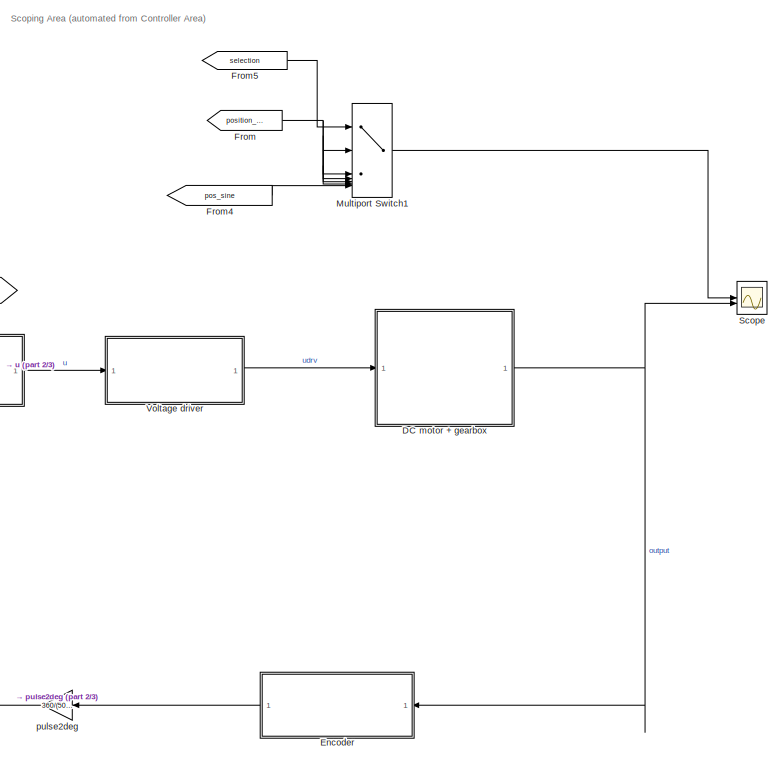
[diagram: root canvas - part 1/3, middle right region]
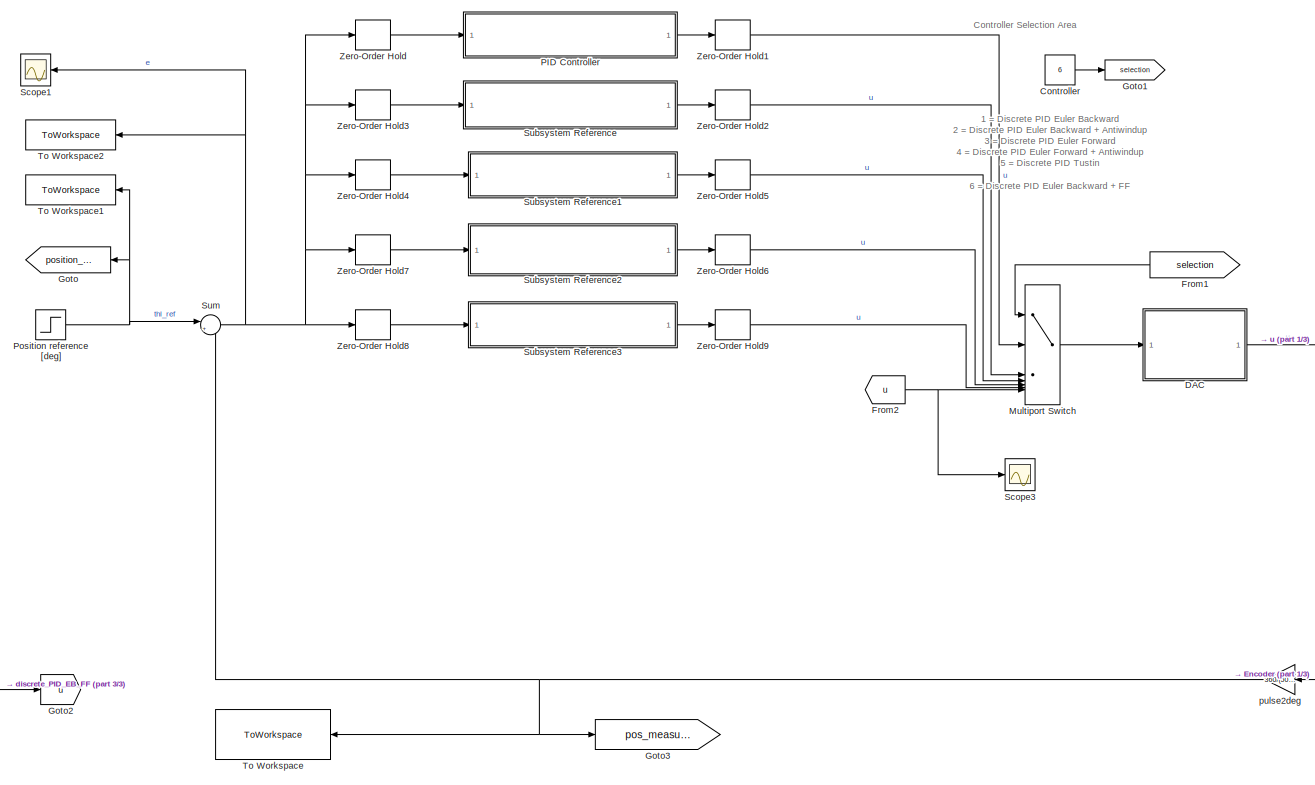
[diagram: root canvas - part 2/3, central region]
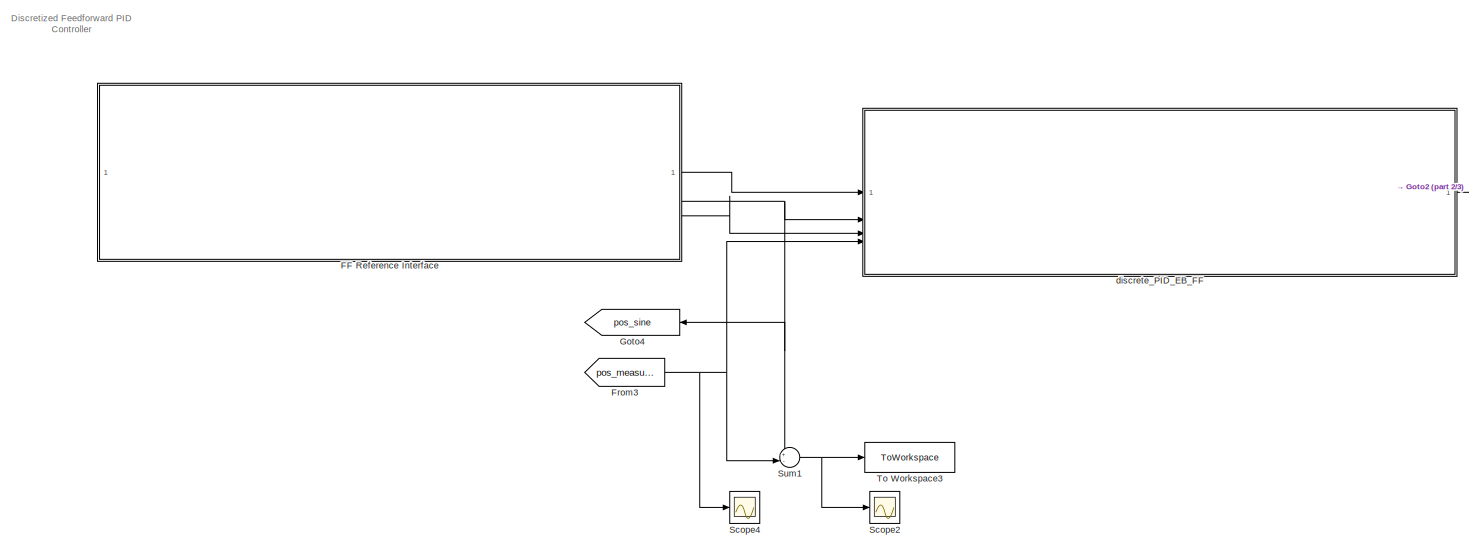
[diagram: root canvas - part 3/3, bottom left region]
MODEL slx_be43032bc49f
KIND model
CONFIG AbsTol = auto
CONFIG EnableMultiTasking = off
CONFIG FixedStep = auto
CONFIG MaxStep = auto
CONFIG MinStep = auto
CONFIG RelTol = 1e-3
CONFIG SampleTimeConstraint = Unconstrained
CONFIG SolverName = VariableStepAuto
CONFIG StartTime = 0.0
CONFIG StopTime = 5
BLOCK [Constant] Controller
  Value = 6
BLOCK [SubSystem] DAC
  ReferencedSubsystem = DAC
BLOCK [SubSystem] DC motor + gearbox
  ReferencedSubsystem = DC_motor_and_gearbox
BLOCK [SubSystem] Encoder
  NameLocation = top
  ReferencedSubsystem = Encoder
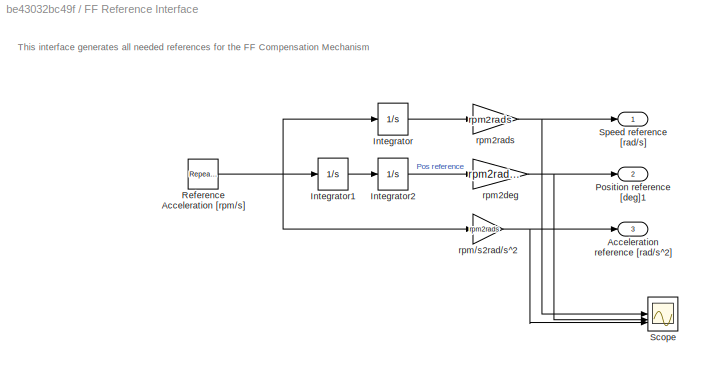
BLOCK [SubSystem] FF Reference Interface
BLOCK [Outport] FF Reference Interface/Acceleration reference [rad//s^2]
  Port = 3
BLOCK [Integrator] FF Reference Interface/Integrator
BLOCK [Integrator] FF Reference Interface/Integrator1
BLOCK [Integrator] FF Reference Interface/Integrator2
BLOCK [Outport] FF Reference Interface/Position reference [deg]1
  Port = 2
BLOCK [Reference] FF Reference Interface/Reference Acceleration [rpm//s]  REF=simulink/Sources/Repeating
Sequence
Stair
  SourceBlock = simulink/Sources/Repeating\nSequence\nStair
  SourceType = Repeating Sequence Stair
BLOCK [Scope] FF Reference Interface/Scope
  Floating = off
  NumInputPorts = 3
  ScopeSpecificationString = Simulink.scopes.TimeScopeBlockCfg('CurrentConfiguration', extmgr.ConfigurationSet(extmgr.Configuration('Core','General UI',true),extmgr.Configuration('Core','Source UI',true),extmgr.Configuration('Sources','WiredSimulink',true,'DataLoggingVariableName','ScopeData3'),extmgr.Configuration('Visuals','Time Domain',true,'SerializedDisplays',{struct('MinYLimReal','-443.36265','MaxYLimReal','3047.78609',...<+1519ch>
BLOCK [Outport] FF Reference Interface/Speed reference [rad//s]
BLOCK [Gain] FF Reference Interface/rpm//s2rad//s^2
  Gain = rpm2rads
BLOCK [Gain] FF Reference Interface/rpm2deg
  Gain = rpm2rads * rad2deg
BLOCK [Gain] FF Reference Interface/rpm2rads
  Gain = rpm2rads
BLOCK [From] From
  GotoTag = position_ref
BLOCK [From] From1
  GotoTag = selection
BLOCK [From] From2
  GotoTag = u
BLOCK [From] From3
  GotoTag = pos_measured
BLOCK [From] From4
  GotoTag = pos_sine
BLOCK [From] From5
  GotoTag = selection
BLOCK [Goto] Goto
  GotoTag = position_ref
BLOCK [Goto] Goto1
  GotoTag = selection
BLOCK [Goto] Goto2
  GotoTag = u
BLOCK [Goto] Goto3
  GotoTag = pos_measured
BLOCK [Goto] Goto4
  GotoTag = pos_sine
BLOCK [MultiPortSwitch] Multiport Switch
  DataPortIndices = {1,2,3,4,5,6}
  DataPortOrder = Specify indices
  InputSameDT = off
  SaturateOnIntegerOverflow = off
BLOCK [MultiPortSwitch] Multiport Switch1
  DataPortIndices = {1,2,3,4,5,6}
  DataPortOrder = Specify indices
  InputSameDT = off
  SaturateOnIntegerOverflow = off
BLOCK [SubSystem] PID Controller
  ReferencedSubsystem = discrete_PID_EB
BLOCK [Step] Position reference [deg]
  After = 360
  SampleTime = 0
BLOCK [Scope] Scope
  Floating = off
  NumInputPorts = 2
  ScopeSpecificationString = Simulink.scopes.TimeScopeBlockCfg('CurrentConfiguration', extmgr.ConfigurationSet(extmgr.Configuration('Core','General UI',true),extmgr.Configuration('Core','Source UI',true),extmgr.Configuration('Sources','WiredSimulink',true),extmgr.Configuration('Visuals','Time Domain',true,'SerializedDisplays',{struct('MinYLimReal','2415.84999','MaxYLimReal','2761.67114','YLabelReal','','MinYLimMag','2415.8499...<+1505ch>
BLOCK [Scope] Scope1
  Floating = off
  NumInputPorts = 1
  ScopeSpecificationString = Simulink.scopes.TimeScopeBlockCfg('CurrentConfiguration', extmgr.ConfigurationSet(extmgr.Configuration('Core','General UI',true),extmgr.Configuration('Core','Source UI',true),extmgr.Configuration('Sources','WiredSimulink',true,'DataLoggingVariableName','ScopeData1'),extmgr.Configuration('Visuals','Time Domain',true,'SerializedDisplays',{struct('MinYLimReal','-2674.305','MaxYLimReal','695.745','YLa...<+1457ch>
BLOCK [Scope] Scope2
  Floating = off
  NumInputPorts = 1
  ScopeSpecificationString = Simulink.scopes.TimeScopeBlockCfg('CurrentConfiguration', extmgr.ConfigurationSet(extmgr.Configuration('Core','General UI',true),extmgr.Configuration('Core','Source UI',true),extmgr.Configuration('Sources','WiredSimulink',true,'DataLoggingVariableName','ScopeData2'),extmgr.Configuration('Visuals','Time Domain',true,'SerializedDisplays',{struct('MinYLimReal','-31.02417','MaxYLimReal','33.46722','YL...<+1477ch>
BLOCK [Scope] Scope3
  Floating = off
  NumInputPorts = 1
  ScopeSpecificationString = Simulink.scopes.TimeScopeBlockCfg('CurrentConfiguration', extmgr.ConfigurationSet(extmgr.Configuration('Core','General UI',true),extmgr.Configuration('Core','Source UI',true),extmgr.Configuration('Sources','WiredSimulink',true,'DataLoggingVariableName','ScopeData4'),extmgr.Configuration('Visuals','Time Domain',true,'SerializedDisplays',{struct('MinYLimReal','-1.77265','MaxYLimReal','24.70924','YLa...<+1489ch>
BLOCK [Scope] Scope4
  Floating = off
  NumInputPorts = 1
  ScopeSpecificationString = Simulink.scopes.TimeScopeBlockCfg('CurrentConfiguration', extmgr.ConfigurationSet(extmgr.Configuration('Core','General UI',true),extmgr.Configuration('Core','Source UI',true),extmgr.Configuration('Sources','WiredSimulink',true,'DataLoggingVariableName','ScopeData5'),extmgr.Configuration('Visuals','Time Domain',true,'SerializedDisplays',{struct('MinYLimReal','-337.1625','MaxYLimReal','3034.4625','Y...<+1469ch>
BLOCK [SubSystem] Subsystem Reference
  ReferencedSubsystem = discrete_PID_EB_antiwindup
BLOCK [SubSystem] Subsystem Reference1
  ReferencedSubsystem = discrete_PID_EF
BLOCK [SubSystem] Subsystem Reference2
  ReferencedSubsystem = discrete_PID_EF_antiwindup
BLOCK [SubSystem] Subsystem Reference3
  ReferencedSubsystem = discrete_PID_T
BLOCK [Sum] Sum
  Inputs = |+-
BLOCK [Sum] Sum1
  Inputs = +-|
BLOCK [ToWorkspace] To Workspace
  FixptAsFi = on
  MaxDataPoints = inf
  SampleTime = -1
  SaveFormat = Timeseries
  VariableName = pos_measured
BLOCK [ToWorkspace] To Workspace1
  FixptAsFi = on
  MaxDataPoints = inf
  SampleTime = -1
  SaveFormat = Timeseries
  VariableName = pos_ref
BLOCK [ToWorkspace] To Workspace2
  FixptAsFi = on
  MaxDataPoints = inf
  SampleTime = -1
  SaveFormat = Timeseries
  VariableName = pos_error
BLOCK [ToWorkspace] To Workspace3
  FixptAsFi = on
  MaxDataPoints = inf
  SampleTime = -1
  SaveFormat = Timeseries
  VariableName = pos_error_FF
BLOCK [SubSystem] Voltage driver
  ReferencedSubsystem = Voltage_driver
BLOCK [ZeroOrderHold] Zero-Order Hold
  SampleTime = Ts
BLOCK [ZeroOrderHold] Zero-Order Hold1
  SampleTime = Ts
BLOCK [ZeroOrderHold] Zero-Order Hold2
  SampleTime = Ts
BLOCK [ZeroOrderHold] Zero-Order Hold3
  SampleTime = Ts
BLOCK [ZeroOrderHold] Zero-Order Hold4
  SampleTime = Ts
BLOCK [ZeroOrderHold] Zero-Order Hold5
  SampleTime = Ts
BLOCK [ZeroOrderHold] Zero-Order Hold6
  SampleTime = Ts
BLOCK [ZeroOrderHold] Zero-Order Hold7
  SampleTime = Ts
BLOCK [ZeroOrderHold] Zero-Order Hold8
  SampleTime = Ts
BLOCK [ZeroOrderHold] Zero-Order Hold9
  SampleTime = Ts
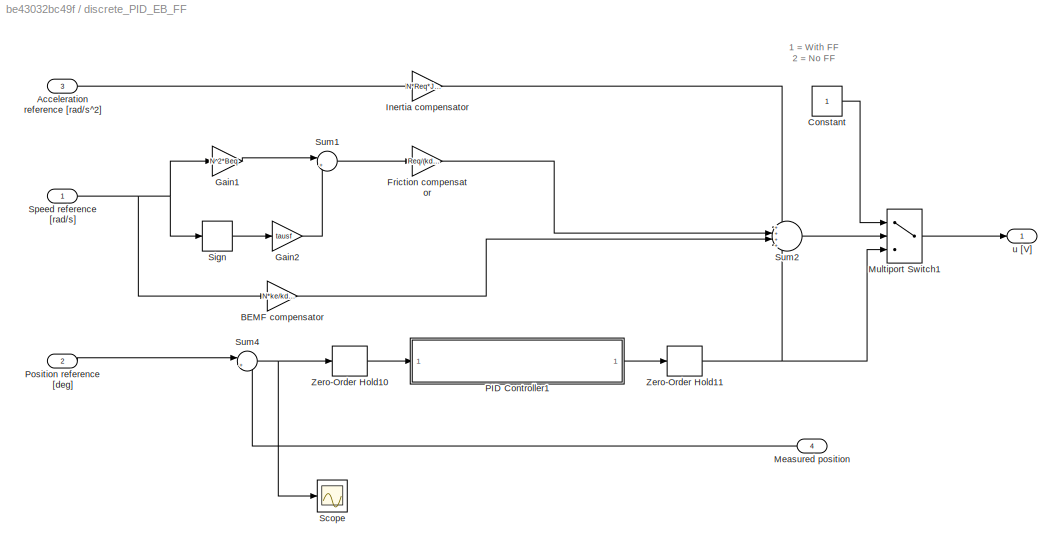
BLOCK [SubSystem] discrete_PID_EB_FF
BLOCK [Inport] discrete_PID_EB_FF/Acceleration reference [rad//s^2]
  Port = 3
BLOCK [Gain] discrete_PID_EB_FF/BEMF compensator
  Gain = N*ke/kdrv
BLOCK [Constant] discrete_PID_EB_FF/Constant
BLOCK [Gain] discrete_PID_EB_FF/Friction compensator
  Gain = Req/(kdrv*Kt*N)
BLOCK [Gain] discrete_PID_EB_FF/Gain1
  Gain = N^2*Beq
BLOCK [Gain] discrete_PID_EB_FF/Gain2
  Gain = tausf
BLOCK [Gain] discrete_PID_EB_FF/Inertia compensator
  Gain = N*Req*Jeq/(kdrv*Kt)
BLOCK [Inport] discrete_PID_EB_FF/Measured position
  NameLocation = top
  Port = 4
BLOCK [MultiPortSwitch] discrete_PID_EB_FF/Multiport Switch1
  InputSameDT = off
  Inputs = 2
  SaturateOnIntegerOverflow = off
BLOCK [SubSystem] discrete_PID_EB_FF/PID Controller1
  ReferencedSubsystem = discrete_PID_EB
BLOCK [Inport] discrete_PID_EB_FF/Position reference [deg]
  Port = 2
BLOCK [Scope] discrete_PID_EB_FF/Scope
  Floating = off
  NumInputPorts = 1
  ScopeSpecificationString = Simulink.scopes.TimeScopeBlockCfg('CurrentConfiguration', extmgr.ConfigurationSet(extmgr.Configuration('Core','General UI',true),extmgr.Configuration('Core','Source UI',true),extmgr.Configuration('Sources','WiredSimulink',true,'DataLoggingVariableName','ScopeData2'),extmgr.Configuration('Visuals','Time Domain',true,'SerializedDisplays',{struct('MinYLimReal','-31.02417','MaxYLimReal','33.46722','YL...<+1458ch>
BLOCK [Signum] discrete_PID_EB_FF/Sign
BLOCK [Inport] discrete_PID_EB_FF/Speed reference [rad//s]
BLOCK [Sum] discrete_PID_EB_FF/Sum1
  Inputs = |++
  NameLocation = top
BLOCK [Sum] discrete_PID_EB_FF/Sum2
  Inputs = ++++
BLOCK [Sum] discrete_PID_EB_FF/Sum4
  Inputs = |+-
BLOCK [ZeroOrderHold] discrete_PID_EB_FF/Zero-Order Hold10
  SampleTime = Ts
BLOCK [ZeroOrderHold] discrete_PID_EB_FF/Zero-Order Hold11
  SampleTime = Ts
BLOCK [Outport] discrete_PID_EB_FF/u [V]
BLOCK [Gain] pulse2deg
  Gain = 360/(500*4)
  NameLocation = top
ANNOTATION (root): 1 = Discrete PID Euler Backward 2 = Discrete PID Euler Backward + Antiwindup 3 = Discrete PID Euler Forward 4 = Discrete PID Euler Forward + Antiwindup 5 = Discrete PID Tustin 6 = Discrete PID Euler Backward + FF
ANNOTATION (root): Controller Selection Area
ANNOTATION (root): Discretized Feedforward PID Controller
ANNOTATION (root): Scoping Area (automated from Controller Area)
ANNOTATION FF Reference Interface: This interface generates all needed references for the FF Compensation Mechanism
ANNOTATION discrete_PID_EB_FF: 1 = With FF 2 = No FF
LINE Controller:1 -> Goto1:1
LINE DAC:1 -> Voltage driver:1
NET DC motor + gearbox:1 -> Encoder:1, Scope:2
LINE Encoder:1 -> pulse2deg:1
LINE FF Reference Interface/Integrator1:1 -> FF Reference Interface/Integrator2:1
LINE FF Reference Interface/Integrator2:1 -> FF Reference Interface/rpm2deg:1
LINE FF Reference Interface/Integrator:1 -> FF Reference Interface/rpm2rads:1
NET FF Reference Interface/Reference Acceleration [rpm//s]:1 -> FF Reference Interface/Integrator1:1, FF Reference Interface/Integrator:1, FF Reference Interface/rpm//s2rad//s^2:1
NET FF Reference Interface/rpm//s2rad//s^2:1 -> FF Reference Interface/Acceleration reference [rad//s^2]:1, FF Reference Interface/Scope:3
NET FF Reference Interface/rpm2deg:1 -> FF Reference Interface/Position reference [deg]1:1, FF Reference Interface/Scope:2
NET FF Reference Interface/rpm2rads:1 -> FF Reference Interface/Scope:1, FF Reference Interface/Speed reference [rad//s]:1
LINE FF Reference Interface:1 -> discrete_PID_EB_FF:1
NET FF Reference Interface:2 -> Goto4:1, Sum1:1, discrete_PID_EB_FF:2
LINE FF Reference Interface:3 -> discrete_PID_EB_FF:3
LINE From1:1 -> Multiport Switch:1
NET From2:1 -> Multiport Switch:7, Scope3:1
NET From3:1 -> Scope4:1, Sum1:2, discrete_PID_EB_FF:4
LINE From4:1 -> Multiport Switch1:7
LINE From5:1 -> Multiport Switch1:1
NET From:1 -> Multiport Switch1:2, Multiport Switch1:3, Multiport Switch1:4, Multiport Switch1:5, Multiport Switch1:6
LINE Multiport Switch1:1 -> Scope:1
LINE Multiport Switch:1 -> DAC:1
LINE PID Controller:1 -> Zero-Order Hold1:1
NET Position reference [deg]:1 -> Goto:1, Sum:1, To Workspace1:1
LINE Subsystem Reference1:1 -> Zero-Order Hold5:1
LINE Subsystem Reference2:1 -> Zero-Order Hold6:1
LINE Subsystem Reference3:1 -> Zero-Order Hold9:1
LINE Subsystem Reference:1 -> Zero-Order Hold2:1
NET Sum1:1 -> Scope2:1, To Workspace3:1
NET Sum:1 -> Scope1:1, To Workspace2:1, Zero-Order Hold3:1, Zero-Order Hold4:1, Zero-Order Hold7:1, Zero-Order Hold8:1, Zero-Order Hold:1
LINE Voltage driver:1 -> DC motor + gearbox:1
LINE Zero-Order Hold1:1 -> Multiport Switch:2
LINE Zero-Order Hold2:1 -> Multiport Switch:3
LINE Zero-Order Hold3:1 -> Subsystem Reference:1
LINE Zero-Order Hold4:1 -> Subsystem Reference1:1
LINE Zero-Order Hold5:1 -> Multiport Switch:4
LINE Zero-Order Hold6:1 -> Multiport Switch:5
LINE Zero-Order Hold7:1 -> Subsystem Reference2:1
LINE Zero-Order Hold8:1 -> Subsystem Reference3:1
LINE Zero-Order Hold9:1 -> Multiport Switch:6
LINE Zero-Order Hold:1 -> PID Controller:1
LINE discrete_PID_EB_FF/Acceleration reference [rad//s^2]:1 -> discrete_PID_EB_FF/Inertia compensator:1
LINE discrete_PID_EB_FF/BEMF compensator:1 -> discrete_PID_EB_FF/Sum2:3
LINE discrete_PID_EB_FF/Constant:1 -> discrete_PID_EB_FF/Multiport Switch1:1
LINE discrete_PID_EB_FF/Friction compensator:1 -> discrete_PID_EB_FF/Sum2:2
LINE discrete_PID_EB_FF/Gain1:1 -> discrete_PID_EB_FF/Sum1:1
LINE discrete_PID_EB_FF/Gain2:1 -> discrete_PID_EB_FF/Sum1:2
LINE discrete_PID_EB_FF/Inertia compensator:1 -> discrete_PID_EB_FF/Sum2:1
LINE discrete_PID_EB_FF/Measured position:1 -> discrete_PID_EB_FF/Sum4:2
LINE discrete_PID_EB_FF/Multiport Switch1:1 -> discrete_PID_EB_FF/u [V]:1
LINE discrete_PID_EB_FF/PID Controller1:1 -> discrete_PID_EB_FF/Zero-Order Hold11:1
LINE discrete_PID_EB_FF/Position reference [deg]:1 -> discrete_PID_EB_FF/Sum4:1
LINE discrete_PID_EB_FF/Sign:1 -> discrete_PID_EB_FF/Gain2:1
NET discrete_PID_EB_FF/Speed reference [rad//s]:1 -> discrete_PID_EB_FF/BEMF compensator:1, discrete_PID_EB_FF/Gain1:1, discrete_PID_EB_FF/Sign:1
LINE discrete_PID_EB_FF/Sum1:1 -> discrete_PID_EB_FF/Friction compensator:1
LINE discrete_PID_EB_FF/Sum2:1 -> discrete_PID_EB_FF/Multiport Switch1:2
NET discrete_PID_EB_FF/Sum4:1 -> discrete_PID_EB_FF/Scope:1, discrete_PID_EB_FF/Zero-Order Hold10:1
LINE discrete_PID_EB_FF/Zero-Order Hold10:1 -> discrete_PID_EB_FF/PID Controller1:1
NET discrete_PID_EB_FF/Zero-Order Hold11:1 -> discrete_PID_EB_FF/Multiport Switch1:3, discrete_PID_EB_FF/Sum2:4
LINE discrete_PID_EB_FF:1 -> Goto2:1
NET pulse2deg:1 -> Goto3:1, Sum:2, To Workspace:1
note: NET lines group one-source signal fan-out (src -> all destinations, sorted); 1:1 wires keep LINE
